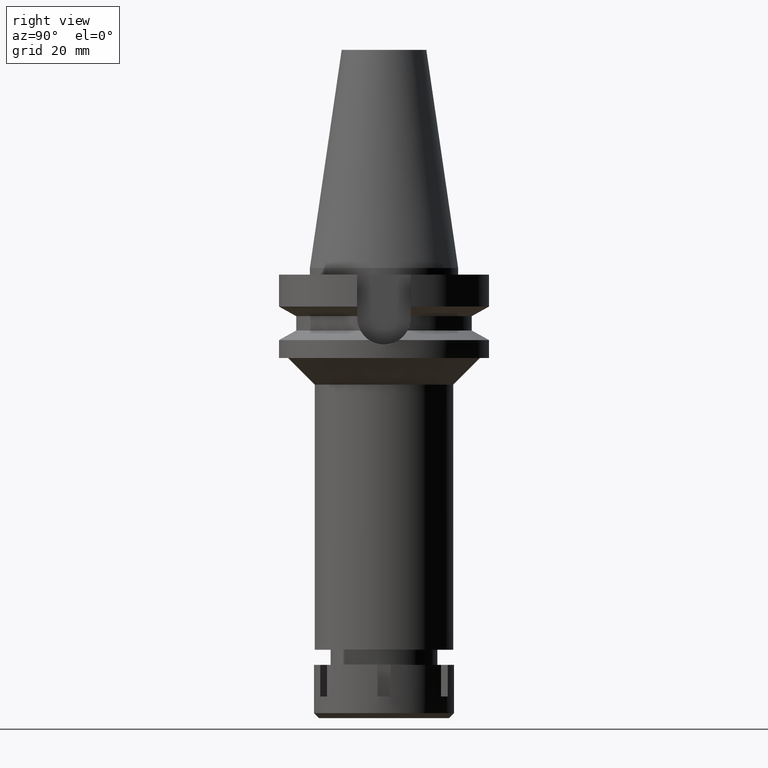
[diagram: clean part render]
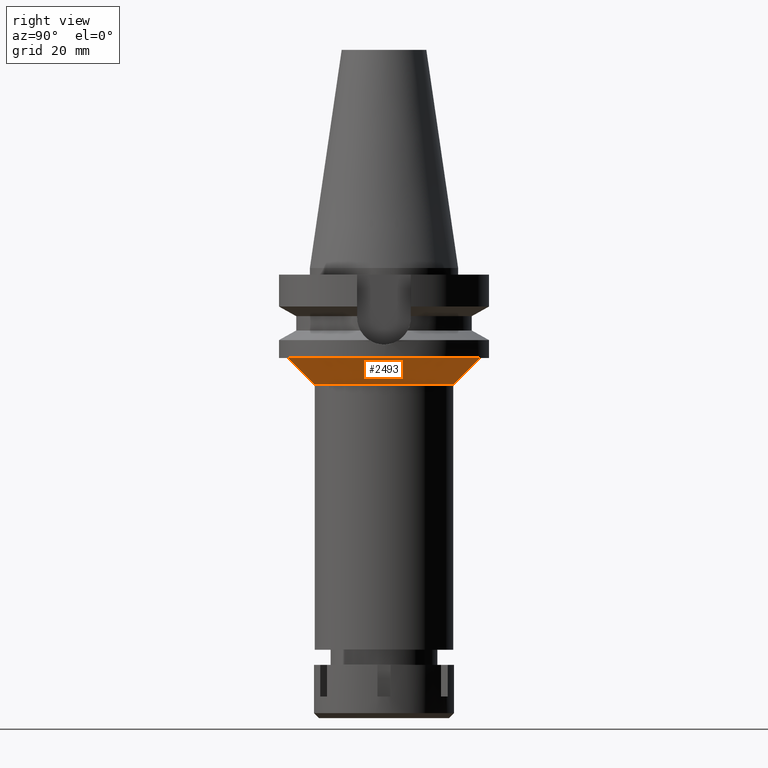
[diagram: same view with one face highlighted and labeled with its STEP entity id]
A machine part, right view. The second image highlights one B-rep face of the part: STEP entity #2493.
In plain terms, the highlighted conical surface has half-angle 45 deg.
Its self-contained STEP definition (entity closure, byte-faithful):
#78 = CARTESIAN_POINT ( 'NONE',  ( 0.0000000000000000000, 0.0000000000000000000, -35.00000000000000000 ) ) ;
#83 = CARTESIAN_POINT ( 'NONE',  ( 0.0000000000000000000, -20.75000000000000000, -35.00000000000000000 ) ) ;
#149 = VERTEX_POINT ( 'NONE', #1038 ) ;
#203 = CARTESIAN_POINT ( 'NONE',  ( 0.0000000000000000000, 0.0000000000000000000, -31.00000000000000000 ) ) ;
#441 = EDGE_LOOP ( 'NONE', ( #2318, #1857, #2092, #1094 ) ) ;
#495 = VERTEX_POINT ( 'NONE', #1478 ) ;
#646 = VERTEX_POINT ( 'NONE', #1660 ) ;
#678 = DIRECTION ( 'NONE',  ( 0.0000000000000000000, 0.0000000000000000000, -1.000000000000000000 ) ) ;
#712 = CONICAL_SURFACE ( 'NONE', #3044, 24.75000000000000000, 0.7853981633972997312 ) ;
#1038 = CARTESIAN_POINT ( 'NONE',  ( 0.0000000000000000000, 28.75000000000000000, -27.00000000000000000 ) ) ;
#1072 = VERTEX_POINT ( 'NONE', #83 ) ;
#1094 = ORIENTED_EDGE ( 'NONE', *, *, #1604, .F. ) ;
#1368 = DIRECTION ( 'NONE',  ( 0.0000000000000000000, 0.0000000000000000000, -1.000000000000000000 ) ) ;
#1457 = EDGE_CURVE ( 'NONE', #149, #646, #3056, .T. ) ;
#1468 = AXIS2_PLACEMENT_3D ( 'NONE', #2281, #1368, #2784 ) ;
#1478 = CARTESIAN_POINT ( 'NONE',  ( 0.0000000000000000000, 20.75000000000000000, -35.00000000000000000 ) ) ;
#1505 = EDGE_CURVE ( 'NONE', #495, #1072, #2349, .T. ) ;
#1582 = AXIS2_PLACEMENT_3D ( 'NONE', #78, #678, #1754 ) ;
#1604 = EDGE_CURVE ( 'NONE', #149, #495, #2307, .T. ) ;
#1631 = DIRECTION ( 'NONE',  ( 0.0000000000000000000, 0.0000000000000000000, 1.000000000000000000 ) ) ;
#1660 = CARTESIAN_POINT ( 'NONE',  ( 0.0000000000000000000, -28.75000000000000000, -27.00000000000000000 ) ) ;
#1663 = CARTESIAN_POINT ( 'NONE',  ( 0.0000000000000000000, -28.75000000000000000, -27.00000000000000000 ) ) ;
#1754 = DIRECTION ( 'NONE',  ( 0.0000000000000000000, 1.000000000000000000, 0.0000000000000000000 ) ) ;
#1857 = ORIENTED_EDGE ( 'NONE', *, *, #3362, .T. ) ;
#2026 = LINE ( 'NONE', #1663, #3391 ) ;
#2092 = ORIENTED_EDGE ( 'NONE', *, *, #1505, .F. ) ;
#2281 = CARTESIAN_POINT ( 'NONE',  ( 0.0000000000000000000, 0.0000000000000000000, -27.00000000000000000 ) ) ;
#2307 = LINE ( 'NONE', #3421, #2993 ) ;
#2318 = ORIENTED_EDGE ( 'NONE', *, *, #1457, .T. ) ;
#2319 = DIRECTION ( 'NONE',  ( 0.0000000000000000000, -0.7071067811865474617, -0.7071067811865474617 ) ) ;
#2349 = CIRCLE ( 'NONE', #1582, 20.75000000000000000 ) ;
#2493 = ADVANCED_FACE ( 'NONE', ( #2723 ), #712, .T. ) ;
#2723 = FACE_OUTER_BOUND ( 'NONE', #441, .T. ) ;
#2784 = DIRECTION ( 'NONE',  ( 0.0000000000000000000, 1.000000000000000000, 0.0000000000000000000 ) ) ;
#2835 = DIRECTION ( 'NONE',  ( 0.0000000000000000000, 1.000000000000000000, 0.0000000000000000000 ) ) ;
#2993 = VECTOR ( 'NONE', #2319, 1000.000000000000114 ) ;
#3044 = AXIS2_PLACEMENT_3D ( 'NONE', #203, #1631, #2835 ) ;
#3056 = CIRCLE ( 'NONE', #1468, 28.75000000000000000 ) ;
#3093 = DIRECTION ( 'NONE',  ( 0.0000000000000000000, 0.7071067811865474617, -0.7071067811865474617 ) ) ;
#3362 = EDGE_CURVE ( 'NONE', #646, #1072, #2026, .T. ) ;
#3391 = VECTOR ( 'NONE', #3093, 1000.000000000000114 ) ;
#3421 = CARTESIAN_POINT ( 'NONE',  ( 0.0000000000000000000, 28.75000000000000000, -27.00000000000000000 ) ) ;